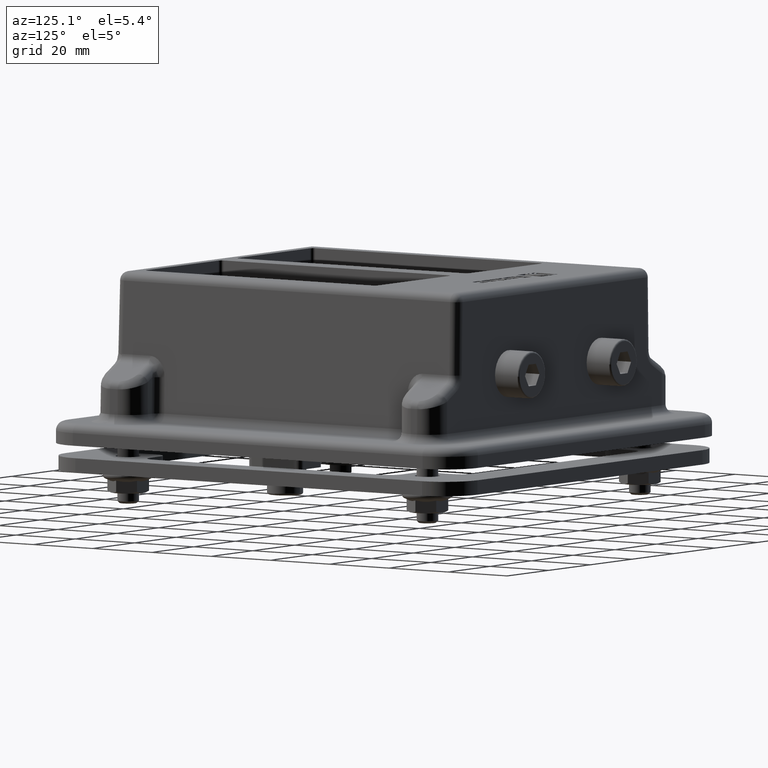
[diagram: clean part render]
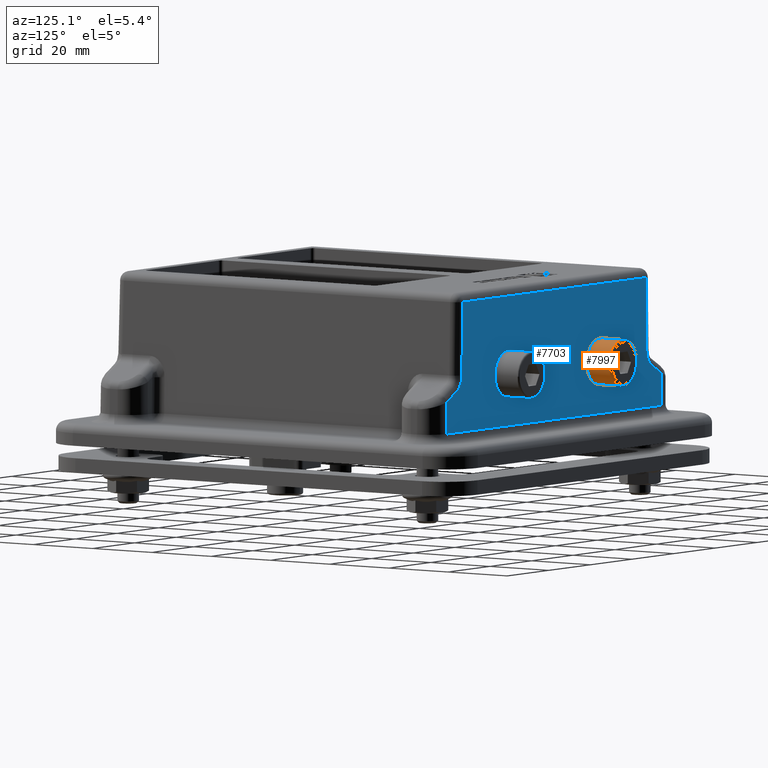
[diagram: same view with the hole feature highlighted: cylindrical wall and planar end face, labeled with their STEP entity ids]
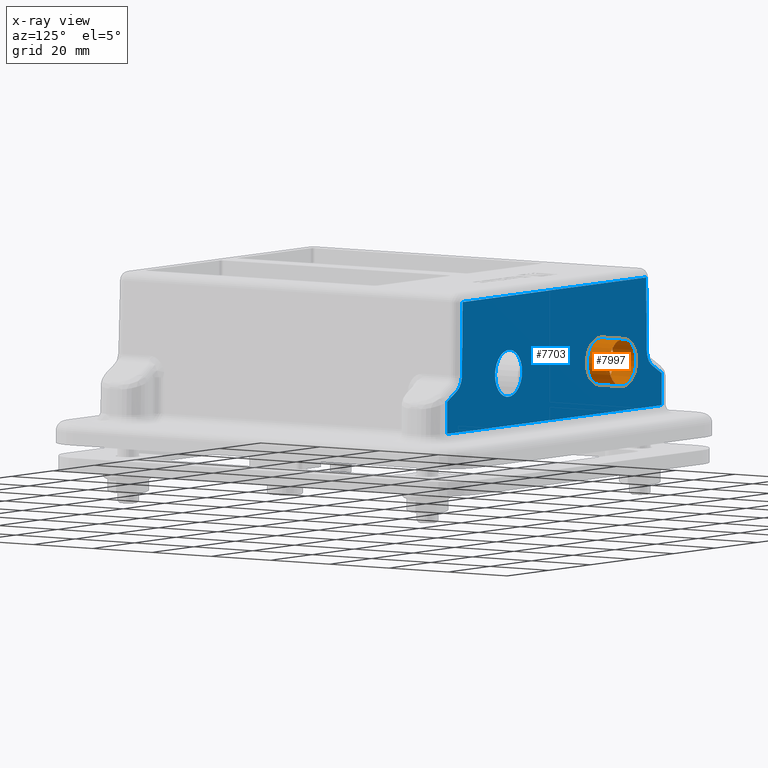
[diagram: x-ray of the same camera — body ghosted, the hole faces saturated]
A machine part, auxiliary view. The highlighted faces form one hole feature of diameter 13 mm: the cylindrical wall (entity #7997, orange) and its adjacent planar end face (entity #7703, blue) — they share a circular edge in the B-rep.
The next image is the same camera in x-ray (body ghosted, the hole faces saturated) — the bore reads through the body.
Wall:
#286=CYLINDRICAL_SURFACE('',#8686,6.5);
#936=LINE('',#14625,#1580);
#1580=VECTOR('',#10648,6.5);
#2182=FACE_OUTER_BOUND('',#2672,.T.);
#2672=EDGE_LOOP('',(#6819,#6820,#6821,#6822,#6823));
#2803=CIRCLE('',#8278,6.5);
#2931=CIRCLE('',#8687,6.5);
#2932=CIRCLE('',#8688,6.5);
#3151=VERTEX_POINT('',#11522);
#3615=VERTEX_POINT('',#14622);
#3616=VERTEX_POINT('',#14623);
#3955=EDGE_CURVE('',#3151,#3151,#2803,.T.);
#4690=EDGE_CURVE('',#3615,#3616,#2931,.T.);
#4691=EDGE_CURVE('',#3615,#3151,#936,.T.);
#4692=EDGE_CURVE('',#3616,#3615,#2932,.T.);
#6819=ORIENTED_EDGE('',*,*,#4690,.F.);
#6820=ORIENTED_EDGE('',*,*,#4691,.T.);
#6821=ORIENTED_EDGE('',*,*,#3955,.F.);
#6822=ORIENTED_EDGE('',*,*,#4691,.F.);
#6823=ORIENTED_EDGE('',*,*,#4692,.F.);
#7997=ADVANCED_FACE('',(#2182),#286,.T.);
#8278=AXIS2_PLACEMENT_3D('',#11523,#9335,#9336);
#8686=AXIS2_PLACEMENT_3D('',#14621,#10644,#10645);
#8687=AXIS2_PLACEMENT_3D('',#14624,#10646,#10647);
#8688=AXIS2_PLACEMENT_3D('',#14626,#10649,#10650);
#9335=DIRECTION('center_axis',(0.,-1.,0.));
#9336=DIRECTION('ref_axis',(1.,-4.03638293060119E-48,1.66533453693774E-16));
#10644=DIRECTION('center_axis',(5.43462699352219E-48,1.,-8.39617525432538E-33));
#10645=DIRECTION('ref_axis',(1.,-4.03638293060119E-48,1.66533453693774E-16));
#10646=DIRECTION('center_axis',(5.43462699352219E-48,1.,-8.39617525432538E-33));
#10647=DIRECTION('ref_axis',(1.,-4.03638293060119E-48,1.66533453693774E-16));
#10648=DIRECTION('',(-5.43462699352219E-48,-1.,8.39617525432538E-33));
#10649=DIRECTION('center_axis',(5.43462699352219E-48,1.,-8.39617525432538E-33));
#10650=DIRECTION('ref_axis',(1.,-4.03638293060119E-48,1.66533453693774E-16));
#11522=CARTESIAN_POINT('',(-28.5,57.5,-20.));
#11523=CARTESIAN_POINT('Origin',(-22.,57.5,-20.));
#14621=CARTESIAN_POINT('Origin',(-22.,57.5,-20.));
#14622=CARTESIAN_POINT('',(-28.5,65.,-20.));
#14623=CARTESIAN_POINT('',(-15.5,65.,-20.));
#14624=CARTESIAN_POINT('Origin',(-22.,65.,-20.));
#14625=CARTESIAN_POINT('',(-28.5,57.5,-20.));
#14626=CARTESIAN_POINT('Origin',(-22.,65.,-20.));
End face:
#435=LINE('',#11504,#1079);
#436=LINE('',#11506,#1080);
#437=LINE('',#11508,#1081);
#438=LINE('',#11512,#1082);
#439=LINE('',#11514,#1083);
#440=LINE('',#11516,#1084);
#441=LINE('',#11520,#1085);
#442=LINE('',#11521,#1086);
#1079=VECTOR('',#9323,10.);
#1080=VECTOR('',#9324,10.);
#1081=VECTOR('',#9325,10.);
#1082=VECTOR('',#9328,10.);
#1083=VECTOR('',#9329,10.);
#1084=VECTOR('',#9330,10.);
#1085=VECTOR('',#9333,10.);
#1086=VECTOR('',#9334,10.);
#1727=FACE_BOUND('',#2348,.T.);
#1728=FACE_BOUND('',#2349,.T.);
#1888=FACE_OUTER_BOUND('',#2347,.T.);
#2347=EDGE_LOOP('',(#5338,#5339,#5340,#5341,#5342,#5343,#5344,#5345,#5346,
#5347));
#2348=EDGE_LOOP('',(#5348));
#2349=EDGE_LOOP('',(#5349));
#2800=CIRCLE('',#8266,6.5);
#2801=CIRCLE('',#8276,4.99999999999999);
#2802=CIRCLE('',#8277,4.99999999999997);
#2803=CIRCLE('',#8278,6.5);
#3128=VERTEX_POINT('',#11460);
#3141=VERTEX_POINT('',#11502);
#3142=VERTEX_POINT('',#11503);
#3143=VERTEX_POINT('',#11505);
#3144=VERTEX_POINT('',#11507);
#3145=VERTEX_POINT('',#11509);
#3146=VERTEX_POINT('',#11511);
#3147=VERTEX_POINT('',#11513);
#3148=VERTEX_POINT('',#11515);
#3149=VERTEX_POINT('',#11517);
#3150=VERTEX_POINT('',#11519);
#3151=VERTEX_POINT('',#11522);
#3926=EDGE_CURVE('',#3128,#3128,#2800,.T.);
#3945=EDGE_CURVE('',#3141,#3142,#435,.T.);
#3946=EDGE_CURVE('',#3143,#3141,#436,.T.);
#3947=EDGE_CURVE('',#3144,#3143,#437,.T.);
#3948=EDGE_CURVE('',#3145,#3144,#2801,.T.);
#3949=EDGE_CURVE('',#3146,#3145,#438,.T.);
#3950=EDGE_CURVE('',#3147,#3146,#439,.T.);
#3951=EDGE_CURVE('',#3148,#3147,#440,.T.);
#3952=EDGE_CURVE('',#3149,#3148,#2802,.T.);
#3953=EDGE_CURVE('',#3150,#3149,#441,.T.);
#3954=EDGE_CURVE('',#3142,#3150,#442,.T.);
#3955=EDGE_CURVE('',#3151,#3151,#2803,.T.);
#5338=ORIENTED_EDGE('',*,*,#3945,.F.);
#5339=ORIENTED_EDGE('',*,*,#3946,.F.);
#5340=ORIENTED_EDGE('',*,*,#3947,.F.);
#5341=ORIENTED_EDGE('',*,*,#3948,.F.);
#5342=ORIENTED_EDGE('',*,*,#3949,.F.);
#5343=ORIENTED_EDGE('',*,*,#3950,.F.);
#5344=ORIENTED_EDGE('',*,*,#3951,.F.);
#5345=ORIENTED_EDGE('',*,*,#3952,.F.);
#5346=ORIENTED_EDGE('',*,*,#3953,.F.);
#5347=ORIENTED_EDGE('',*,*,#3954,.F.);
#5348=ORIENTED_EDGE('',*,*,#3955,.T.);
#5349=ORIENTED_EDGE('',*,*,#3926,.T.);
#6969=PLANE('',#8275);
#7703=ADVANCED_FACE('',(#1888,#1727,#1728),#6969,.T.);
#8266=AXIS2_PLACEMENT_3D('',#11462,#9285,#9286);
#8275=AXIS2_PLACEMENT_3D('',#11501,#9321,#9322);
#8276=AXIS2_PLACEMENT_3D('',#11510,#9326,#9327);
#8277=AXIS2_PLACEMENT_3D('',#11518,#9331,#9332);
#8278=AXIS2_PLACEMENT_3D('',#11523,#9335,#9336);
#9285=DIRECTION('center_axis',(0.,-1.,0.));
#9286=DIRECTION('ref_axis',(1.,5.99668309220161E-48,5.55111512312575E-17));
#9321=DIRECTION('center_axis',(0.,1.,0.));
#9322=DIRECTION('ref_axis',(1.,0.,1.22464679914735E-16));
#9323=DIRECTION('',(1.,0.,1.22464679914735E-16));
#9324=DIRECTION('',(1.22464679914735E-16,0.,-1.));
#9325=DIRECTION('',(-0.877895572914385,0.,-0.478852130680573));
#9326=DIRECTION('center_axis',(0.,1.,0.));
#9327=DIRECTION('ref_axis',(0.85541154096543,0.,-0.517948931443195));
#9328=DIRECTION('',(-0.0174524064372834,0.,-0.999847695156391));
#9329=DIRECTION('',(-1.,0.,-1.22464679914735E-16));
#9330=DIRECTION('',(-0.0174524064372836,0.,0.999847695156391));
#9331=DIRECTION('center_axis',(0.,1.,0.));
#9332=DIRECTION('ref_axis',(-0.855411540965431,0.,-0.517948931443195));
#9333=DIRECTION('',(-0.877895572914385,0.,0.478852130680573));
#9334=DIRECTION('',(-1.22464679914735E-16,0.,1.));
#9335=DIRECTION('center_axis',(0.,-1.,0.));
#9336=DIRECTION('ref_axis',(1.,-4.03638293060119E-48,1.66533453693774E-16));
#11460=CARTESIAN_POINT('',(15.5,57.5,-20.));
#11462=CARTESIAN_POINT('Origin',(22.,57.5,-20.));
#11501=CARTESIAN_POINT('Origin',(-46.5,57.5,3.99999999999999));
#11502=CARTESIAN_POINT('',(-51.5,57.5,-34.5));
#11503=CARTESIAN_POINT('',(51.5,57.5,-34.5));
#11504=CARTESIAN_POINT('',(-23.25,57.5,-34.5));
#11505=CARTESIAN_POINT('',(-51.5,57.5,-25.5749918377595));
#11506=CARTESIAN_POINT('',(-51.5,57.5,-16.5));
#11507=CARTESIAN_POINT('',(-47.002918484813,57.5,-23.1220382840211));
#11508=CARTESIAN_POINT('',(-40.2582836860374,57.5,-19.4431465755981));
#11509=CARTESIAN_POINT('',(-44.3979406624339,57.5,-18.8198224516356));
#11510=CARTESIAN_POINT('Origin',(-49.3971791382159,57.5,-18.7325604194492));
#11511=CARTESIAN_POINT('',(-44.0432568422108,57.5,1.49999999999999));
#11512=CARTESIAN_POINT('',(-44.000380762109,57.5,3.95636898390679));
#11513=CARTESIAN_POINT('',(44.0432568422108,57.5,1.5));
#11514=CARTESIAN_POINT('',(-23.25,57.5,1.49999999999999));
#11515=CARTESIAN_POINT('',(44.3979406624339,57.5,-18.8198224516356));
#11516=CARTESIAN_POINT('',(43.986217490303,57.5,4.7677822822399));
#11517=CARTESIAN_POINT('',(47.002918484813,57.5,-23.1220382840211));
#11518=CARTESIAN_POINT('Origin',(49.3971791382159,57.5,-18.7325604194492));
#11519=CARTESIAN_POINT('',(51.5,57.5,-25.5749918377595));
#11520=CARTESIAN_POINT('',(4.420704068203,57.5,0.104624125038899));
#11521=CARTESIAN_POINT('',(51.5,57.5,-16.5));
#11522=CARTESIAN_POINT('',(-28.5,57.5,-20.));
#11523=CARTESIAN_POINT('Origin',(-22.,57.5,-20.));